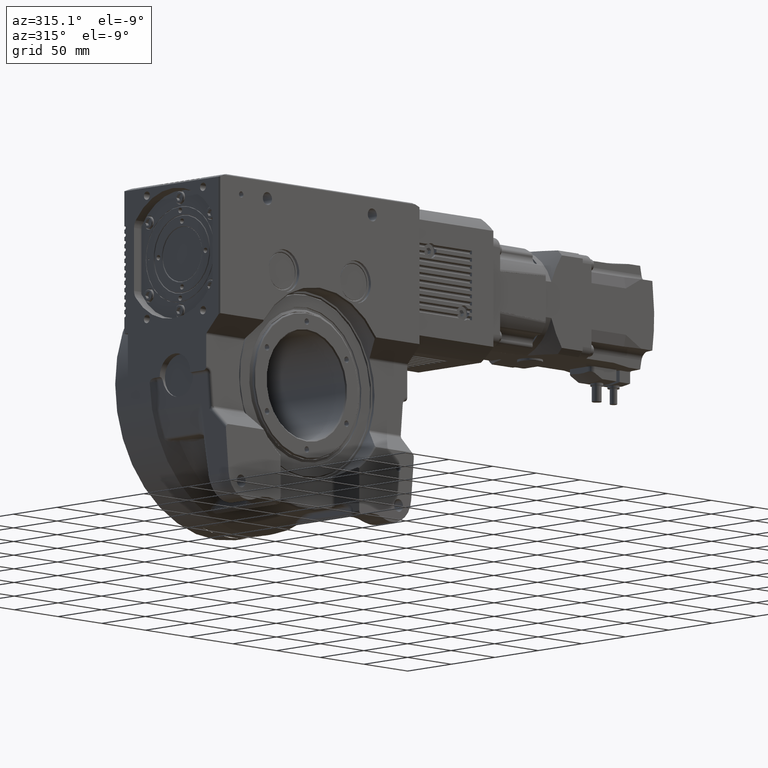
[diagram: clean part render]
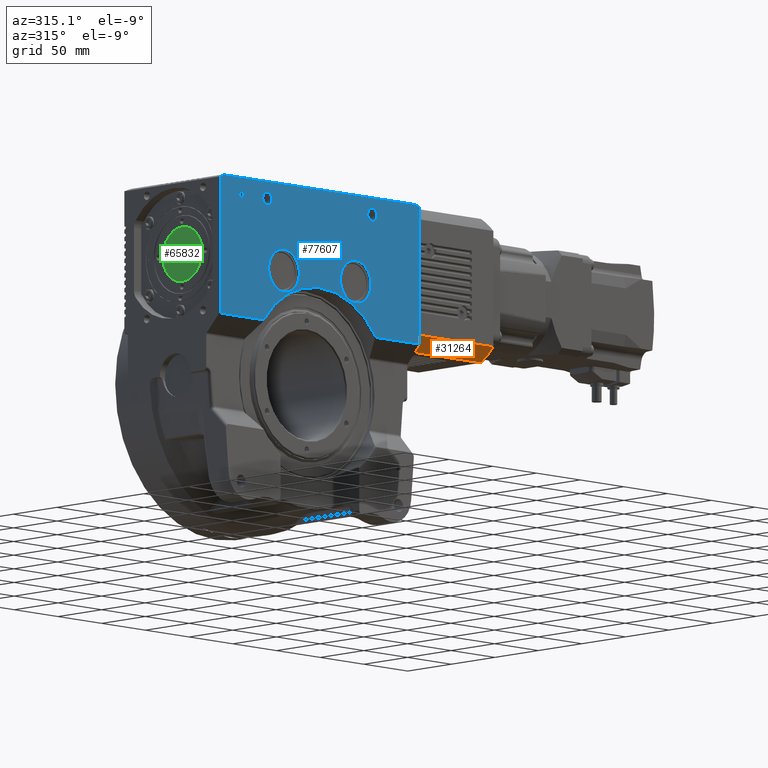
[diagram: same view with three faces highlighted in distinct colors, each labeled with its STEP entity id]
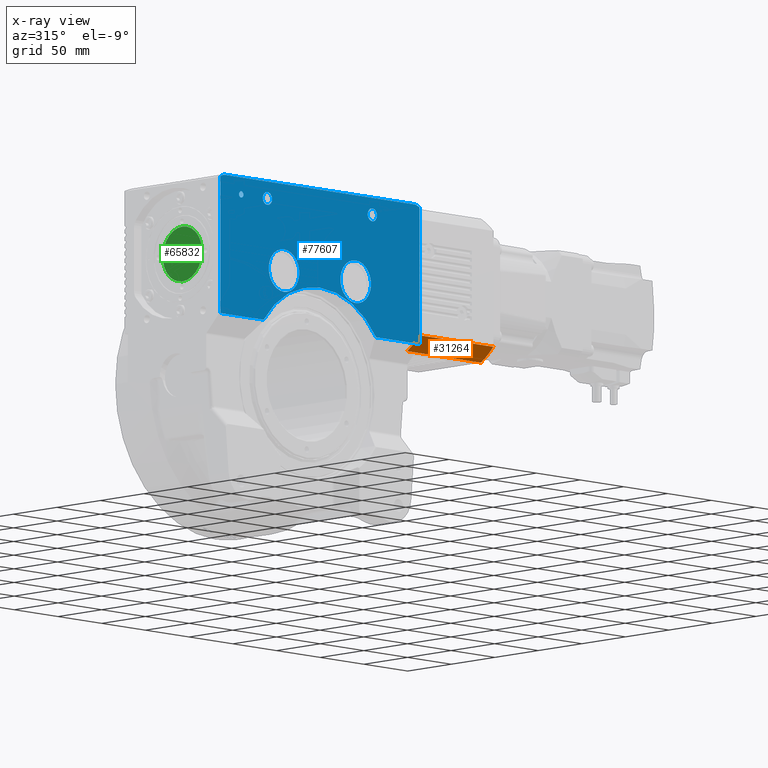
[diagram: x-ray of the same camera — body ghosted, the three highlighted faces saturated]
A machine part, auxiliary view with three faces highlighted in distinct colors.
The next image is the same camera in x-ray (body ghosted, the three faces saturated) — at least one of them is partly hidden behind the body in this view.
Their STEP definitions:

[orange] entity #31264 — the highlighted cylindrical surface (partial cylindrical patch) has radius 69 mm, axis along (-1, 0, 0).
#1456 = DIRECTION ( 'NONE',  ( -1.000000000000000000, 3.608674816867150188E-16, 2.220446049250309876E-16 ) ) ;
#2309 = VECTOR ( 'NONE', #41007, 1000.000000000000000 ) ;
#2324 = LINE ( 'NONE', #75388, #39472 ) ;
#5391 = DIRECTION ( 'NONE',  ( -1.000000000000000000, 0.000000000000000000, 0.000000000000000000 ) ) ;
#14484 = LINE ( 'NONE', #35765, #2309 ) ;
#15080 = EDGE_LOOP ( 'NONE', ( #82884, #39103, #24491, #30785 ) ) ;
#20070 = DIRECTION ( 'NONE',  ( -1.000000000000000000, 3.608674816867150188E-16, 2.220446049250309876E-16 ) ) ;
#23572 = AXIS2_PLACEMENT_3D ( 'NONE', #64982, #5391, #58465 ) ;
#24491 = ORIENTED_EDGE ( 'NONE', *, *, #59817, .T. ) ;
#26186 = DIRECTION ( 'NONE',  ( -2.220446049250310369E-16, -8.480871470268981378E-17, -1.000000000000000000 ) ) ;
#26765 = AXIS2_PLACEMENT_3D ( 'NONE', #66189, #20070, #26186 ) ;
#27122 = FACE_OUTER_BOUND ( 'NONE', #15080, .T. ) ;
#27556 = CARTESIAN_POINT ( 'NONE',  ( 0.000000000000000000, 0.000000000000000000, 0.000000000000000000 ) ) ;
#28858 = DIRECTION ( 'NONE',  ( 1.000000000000000000, -3.608674816867150188E-16, -2.220446049250315053E-16 ) ) ;
#30785 = ORIENTED_EDGE ( 'NONE', *, *, #79170, .T. ) ;
#31264 = ADVANCED_FACE ( 'NONE', ( #27122 ), #58164, .T. ) ;
#33437 = CARTESIAN_POINT ( 'NONE',  ( 84.50000000000000000, -50.00000000000000000, -47.54997371187499766 ) ) ;
#35765 = CARTESIAN_POINT ( 'NONE',  ( -3.295031311321454173E-14, -35.77708763999665109, -59.00000000000000000 ) ) ;
#36901 = EDGE_CURVE ( 'NONE', #75040, #48368, #73965, .T. ) ;
#39103 = ORIENTED_EDGE ( 'NONE', *, *, #36901, .F. ) ;
#39472 = VECTOR ( 'NONE', #28858, 1000.000000000000000 ) ;
#39758 = EDGE_CURVE ( 'NONE', #48368, #54940, #2324, .T. ) ;
#41007 = DIRECTION ( 'NONE',  ( 1.000000000000000000, -3.608674816867150188E-16, -2.220446049250315053E-16 ) ) ;
#42094 = CARTESIAN_POINT ( 'NONE',  ( -3.295031311321454173E-14, -35.77708763999665109, -59.00000000000000000 ) ) ;
#48368 = VERTEX_POINT ( 'NONE', #84329 ) ;
#48380 = VERTEX_POINT ( 'NONE', #56074 ) ;
#53643 = DIRECTION ( 'NONE',  ( -2.220446049250310369E-16, -8.480871470268970285E-17, -1.000000000000000000 ) ) ;
#54940 = VERTEX_POINT ( 'NONE', #33437 ) ;
#56074 = CARTESIAN_POINT ( 'NONE',  ( 84.50000000000000000, -35.77708763999665109, -59.00000000000000000 ) ) ;
#58164 = CYLINDRICAL_SURFACE ( 'NONE', #70680, 69.00000000000000000 ) ;
#58465 = DIRECTION ( 'NONE',  ( 0.000000000000000000, 0.000000000000000000, 1.000000000000000000 ) ) ;
#59817 = EDGE_CURVE ( 'NONE', #75040, #48380, #14484, .T. ) ;
#61099 = CIRCLE ( 'NONE', #23572, 69.00000000000000000 ) ;
#64982 = CARTESIAN_POINT ( 'NONE',  ( 84.50000000000000000, -2.165204890120289758E-14, -1.332267629550188006E-14 ) ) ;
#66189 = CARTESIAN_POINT ( 'NONE',  ( 0.000000000000000000, 0.000000000000000000, 0.000000000000000000 ) ) ;
#70680 = AXIS2_PLACEMENT_3D ( 'NONE', #27556, #1456, #53643 ) ;
#73965 = CIRCLE ( 'NONE', #26765, 69.00000000000000000 ) ;
#75040 = VERTEX_POINT ( 'NONE', #42094 ) ;
#75388 = CARTESIAN_POINT ( 'NONE',  ( -3.554048311529190205E-14, -50.00000000000000000, -47.54997371187499766 ) ) ;
#79170 = EDGE_CURVE ( 'NONE', #48380, #54940, #61099, .T. ) ;
#82884 = ORIENTED_EDGE ( 'NONE', *, *, #39758, .F. ) ;
#84329 = CARTESIAN_POINT ( 'NONE',  ( -3.554048311529190205E-14, -50.00000000000000000, -47.54997371187499766 ) ) ;

[blue] entity #77607 — the highlighted planar face has unit normal (0, 1, 0).
#649 = LINE ( 'NONE', #52867, #70607 ) ;
#672 = DIRECTION ( 'NONE',  ( 0.000000000000000000, -1.000000000000000000, 0.000000000000000000 ) ) ;
#695 = AXIS2_PLACEMENT_3D ( 'NONE', #80155, #45784, #78869 ) ;
#981 = FACE_OUTER_BOUND ( 'NONE', #84435, .T. ) ;
#995 = EDGE_CURVE ( 'NONE', #62371, #54297, #50778, .T. ) ;
#1553 = DIRECTION ( 'NONE',  ( 0.000000000000000000, -1.000000000000000000, 0.000000000000000000 ) ) ;
#1925 = DIRECTION ( 'NONE',  ( 0.000000000000000000, 0.000000000000000000, -1.000000000000000000 ) ) ;
#2087 = VECTOR ( 'NONE', #51206, 1000.000000000000000 ) ;
#2200 = DIRECTION ( 'NONE',  ( 0.000000000000000000, -1.000000000000000000, 0.000000000000000000 ) ) ;
#2812 = DIRECTION ( 'NONE',  ( 0.000000000000000000, 0.000000000000000000, -1.000000000000000000 ) ) ;
#3151 = VERTEX_POINT ( 'NONE', #25999 ) ;
#3423 = VERTEX_POINT ( 'NONE', #36790 ) ;
#3470 = CIRCLE ( 'NONE', #695, 17.50000000000000000 ) ;
#3507 = AXIS2_PLACEMENT_3D ( 'NONE', #40047, #53517, #71804 ) ;
#3541 = CIRCLE ( 'NONE', #25784, 17.50000000000000000 ) ;
#4296 = DIRECTION ( 'NONE',  ( 0.000000000000000000, 0.000000000000000000, 1.000000000000000000 ) ) ;
#4676 = VERTEX_POINT ( 'NONE', #70471 ) ;
#4880 = CIRCLE ( 'NONE', #3507, 5.250000000000004441 ) ;
#5436 = EDGE_CURVE ( 'NONE', #49827, #43812, #3470, .T. ) ;
#6893 = CARTESIAN_POINT ( 'NONE',  ( 6.033302353763029824E-15, -51.00000000000000000, 45.00000000000000000 ) ) ;
#7380 = CARTESIAN_POINT ( 'NONE',  ( -114.0000000000000000, -51.00000000000000000, 45.00000000000000000 ) ) ;
#9128 = CARTESIAN_POINT ( 'NONE',  ( 41.00000000000000000, -51.00000000000000000, 88.00000000000000000 ) ) ;
#11263 = ORIENTED_EDGE ( 'NONE', *, *, #34214, .F. ) ;
#12148 = CARTESIAN_POINT ( 'NONE',  ( 114.0000000000000000, -51.00000000000000000, 157.0000000000000000 ) ) ;
#12444 = CARTESIAN_POINT ( 'NONE',  ( 114.0000000000000000, -51.00000000000000000, 45.00000000000000000 ) ) ;
#13104 = CARTESIAN_POINT ( 'NONE',  ( 109.5050451610903934, -51.00000000000000000, 159.0000000000000000 ) ) ;
#13822 = VECTOR ( 'NONE', #47319, 1000.000000000000000 ) ;
#15130 = CARTESIAN_POINT ( 'NONE',  ( 114.0000000000000000, -51.00000000000000000, 157.3639702342660200 ) ) ;
#15664 = EDGE_CURVE ( 'NONE', #66072, #78159, #649, .T. ) ;
#16142 = ORIENTED_EDGE ( 'NONE', *, *, #82449, .T. ) ;
#16432 = CARTESIAN_POINT ( 'NONE',  ( 41.00000000000000000, -51.00000000000000000, 70.50000000000000000 ) ) ;
#16499 = DIRECTION ( 'NONE',  ( -0.9396926207859073177, 0.000000000000000000, -0.3420201433256715995 ) ) ;
#17415 = DIRECTION ( 'NONE',  ( -0.9396926207859073177, 0.000000000000000000, 0.3420201433256715995 ) ) ;
#17784 = EDGE_CURVE ( 'NONE', #43812, #49827, #47987, .T. ) ;
#19043 = CARTESIAN_POINT ( 'NONE',  ( -41.00000000000000000, -51.00000000000000000, 88.00000000000000000 ) ) ;
#19054 = CIRCLE ( 'NONE', #30158, 2.500000000000002220 ) ;
#19177 = EDGE_CURVE ( 'NONE', #4676, #3151, #4880, .T. ) ;
#19327 = DIRECTION ( 'NONE',  ( 0.000000000000000000, -1.000000000000000000, 0.000000000000000000 ) ) ;
#22177 = DIRECTION ( 'NONE',  ( 0.000000000000000000, 0.000000000000000000, -1.000000000000000000 ) ) ;
#22246 = AXIS2_PLACEMENT_3D ( 'NONE', #30171, #69344, #2812 ) ;
#22675 = CARTESIAN_POINT ( 'NONE',  ( -90.00000000000000000, -51.00000000000000000, 147.5000000000000000 ) ) ;
#23062 = EDGE_LOOP ( 'NONE', ( #32638, #68328 ) ) ;
#23207 = EDGE_CURVE ( 'NONE', #38174, #50772, #3541, .T. ) ;
#23560 = PLANE ( 'NONE',  #58050 ) ;
#24222 = DIRECTION ( 'NONE',  ( 0.000000000000000000, 1.000000000000000000, 0.000000000000000000 ) ) ;
#25196 = VERTEX_POINT ( 'NONE', #12444 ) ;
#25784 = AXIS2_PLACEMENT_3D ( 'NONE', #9128, #43422, #22177 ) ;
#25999 = CARTESIAN_POINT ( 'NONE',  ( -60.00000000000000000, -51.00000000000000000, 139.7500000000000000 ) ) ;
#26296 = DIRECTION ( 'NONE',  ( 0.000000000000000000, 0.000000000000000000, -1.000000000000000000 ) ) ;
#27519 = FACE_BOUND ( 'NONE', #23062, .T. ) ;
#27995 = CARTESIAN_POINT ( 'NONE',  ( -114.0000000000000000, -51.00000000000000000, 45.00000000000000000 ) ) ;
#28224 = LINE ( 'NONE', #7380, #74901 ) ;
#28528 = ORIENTED_EDGE ( 'NONE', *, *, #44486, .F. ) ;
#29229 = FACE_BOUND ( 'NONE', #80310, .T. ) ;
#29501 = ORIENTED_EDGE ( 'NONE', *, *, #47751, .T. ) ;
#29744 = EDGE_CURVE ( 'NONE', #3151, #4676, #34309, .T. ) ;
#30158 = AXIS2_PLACEMENT_3D ( 'NONE', #54599, #1553, #34622 ) ;
#30171 = CARTESIAN_POINT ( 'NONE',  ( 41.00000000000000000, -51.00000000000000000, 88.00000000000000000 ) ) ;
#32585 = CARTESIAN_POINT ( 'NONE',  ( 64.32145831680129788, -51.00000000000000000, 45.00000000000000000 ) ) ;
#32638 = ORIENTED_EDGE ( 'NONE', *, *, #17784, .F. ) ;
#33088 = VERTEX_POINT ( 'NONE', #22675 ) ;
#33166 = CIRCLE ( 'NONE', #51159, 5.250000000000004441 ) ;
#33658 = CARTESIAN_POINT ( 'NONE',  ( -90.00000000000000000, -51.00000000000000000, 145.0000000000000000 ) ) ;
#33861 = EDGE_CURVE ( 'NONE', #47575, #25196, #54681, .T. ) ;
#34214 = EDGE_CURVE ( 'NONE', #50772, #38174, #48644, .T. ) ;
#34309 = CIRCLE ( 'NONE', #56540, 5.250000000000004441 ) ;
#34622 = DIRECTION ( 'NONE',  ( 0.000000000000000000, 0.000000000000000000, -1.000000000000000000 ) ) ;
#34992 = CARTESIAN_POINT ( 'NONE',  ( 60.00000000000000000, -51.00000000000000000, 145.0000000000000000 ) ) ;
#36418 = DIRECTION ( 'NONE',  ( 0.000000000000000000, 0.000000000000000000, 1.000000000000000000 ) ) ;
#36546 = EDGE_CURVE ( 'NONE', #72948, #33088, #82290, .T. ) ;
#36790 = CARTESIAN_POINT ( 'NONE',  ( 60.00000000000000000, -51.00000000000000000, 139.7500000000000000 ) ) ;
#37375 = CARTESIAN_POINT ( 'NONE',  ( -109.5050451610908055, -51.00000000000000000, 159.0000000000000000 ) ) ;
#38174 = VERTEX_POINT ( 'NONE', #82549 ) ;
#38672 = DIRECTION ( 'NONE',  ( 1.513940488125214831E-16, 0.000000000000000000, 1.000000000000000000 ) ) ;
#39396 = CARTESIAN_POINT ( 'NONE',  ( -60.00000000000000000, -51.00000000000000000, 145.0000000000000000 ) ) ;
#39789 = DIRECTION ( 'NONE',  ( 0.000000000000000000, -1.000000000000000000, 0.000000000000000000 ) ) ;
#40047 = CARTESIAN_POINT ( 'NONE',  ( -60.00000000000000000, -51.00000000000000000, 145.0000000000000000 ) ) ;
#41385 = EDGE_LOOP ( 'NONE', ( #59050, #28528 ) ) ;
#42959 = CARTESIAN_POINT ( 'NONE',  ( -6.033302353763029824E-15, -51.00000000000000000, 45.00000000000000000 ) ) ;
#43404 = AXIS2_PLACEMENT_3D ( 'NONE', #50334, #24222, #36418 ) ;
#43422 = DIRECTION ( 'NONE',  ( 0.000000000000000000, -1.000000000000000000, 0.000000000000000000 ) ) ;
#43531 = FACE_BOUND ( 'NONE', #41385, .T. ) ;
#43812 = VERTEX_POINT ( 'NONE', #81376 ) ;
#44486 = EDGE_CURVE ( 'NONE', #33088, #72948, #19054, .T. ) ;
#44745 = AXIS2_PLACEMENT_3D ( 'NONE', #33658, #19327, #26296 ) ;
#45352 = CARTESIAN_POINT ( 'NONE',  ( -64.32145831680129788, -51.00000000000000000, 45.00000000000000000 ) ) ;
#45784 = DIRECTION ( 'NONE',  ( 0.000000000000000000, -1.000000000000000000, 0.000000000000000000 ) ) ;
#46642 = ORIENTED_EDGE ( 'NONE', *, *, #76050, .F. ) ;
#47319 = DIRECTION ( 'NONE',  ( 1.000000000000000000, 0.000000000000000000, -1.340733856391782061E-16 ) ) ;
#47575 = VERTEX_POINT ( 'NONE', #32585 ) ;
#47751 = EDGE_CURVE ( 'NONE', #59776, #62371, #28224, .T. ) ;
#47987 = CIRCLE ( 'NONE', #50718, 17.50000000000000000 ) ;
#48296 = ORIENTED_EDGE ( 'NONE', *, *, #61515, .F. ) ;
#48644 = CIRCLE ( 'NONE', #22246, 17.50000000000000000 ) ;
#49827 = VERTEX_POINT ( 'NONE', #67332 ) ;
#50262 = CIRCLE ( 'NONE', #43404, 78.50000000000000000 ) ;
#50334 = CARTESIAN_POINT ( 'NONE',  ( 0.000000000000000000, -51.00000000000000000, 0.000000000000000000 ) ) ;
#50478 = LINE ( 'NONE', #57444, #77858 ) ;
#50718 = AXIS2_PLACEMENT_3D ( 'NONE', #19043, #85181, #4296 ) ;
#50772 = VERTEX_POINT ( 'NONE', #16432 ) ;
#50778 = LINE ( 'NONE', #42959, #2087 ) ;
#51159 = AXIS2_PLACEMENT_3D ( 'NONE', #74416, #2200, #67898 ) ;
#51206 = DIRECTION ( 'NONE',  ( 1.000000000000000000, 0.000000000000000000, 1.340733856391782061E-16 ) ) ;
#52867 = CARTESIAN_POINT ( 'NONE',  ( -106.7575677416361941, -51.00000000000000000, 159.0000000000000000 ) ) ;
#53310 = DIRECTION ( 'NONE',  ( 0.000000000000000000, 0.000000000000000000, -1.000000000000000000 ) ) ;
#53324 = ORIENTED_EDGE ( 'NONE', *, *, #15664, .T. ) ;
#53517 = DIRECTION ( 'NONE',  ( 0.000000000000000000, -1.000000000000000000, 0.000000000000000000 ) ) ;
#54297 = VERTEX_POINT ( 'NONE', #45352 ) ;
#54599 = CARTESIAN_POINT ( 'NONE',  ( -90.00000000000000000, -51.00000000000000000, 145.0000000000000000 ) ) ;
#54681 = LINE ( 'NONE', #6893, #13822 ) ;
#56043 = ORIENTED_EDGE ( 'NONE', *, *, #19177, .F. ) ;
#56540 = AXIS2_PLACEMENT_3D ( 'NONE', #39396, #672, #53310 ) ;
#56626 = DIRECTION ( 'NONE',  ( -0.000000000000000000, 1.000000000000000000, 0.000000000000000000 ) ) ;
#57444 = CARTESIAN_POINT ( 'NONE',  ( 106.7575677416361941, -51.00000000000000000, 160.0000000000000000 ) ) ;
#58050 = AXIS2_PLACEMENT_3D ( 'NONE', #74934, #56626, #61877 ) ;
#58962 = DIRECTION ( 'NONE',  ( -1.000000000000000000, 0.000000000000000000, 0.000000000000000000 ) ) ;
#59050 = ORIENTED_EDGE ( 'NONE', *, *, #36546, .F. ) ;
#59602 = ORIENTED_EDGE ( 'NONE', *, *, #29744, .F. ) ;
#59776 = VERTEX_POINT ( 'NONE', #81484 ) ;
#61515 = EDGE_CURVE ( 'NONE', #3423, #80411, #33166, .T. ) ;
#61877 = DIRECTION ( 'NONE',  ( 1.000000000000000000, 0.000000000000000000, 0.000000000000000000 ) ) ;
#62371 = VERTEX_POINT ( 'NONE', #27995 ) ;
#62725 = FACE_BOUND ( 'NONE', #63399, .T. ) ;
#63399 = EDGE_LOOP ( 'NONE', ( #59602, #56043 ) ) ;
#65884 = ORIENTED_EDGE ( 'NONE', *, *, #33861, .T. ) ;
#66072 = VERTEX_POINT ( 'NONE', #13104 ) ;
#66820 = EDGE_CURVE ( 'NONE', #54297, #47575, #50262, .T. ) ;
#66912 = VECTOR ( 'NONE', #16499, 1000.000000000000114 ) ;
#67332 = CARTESIAN_POINT ( 'NONE',  ( -41.00000000000000000, -51.00000000000000000, 105.5000000000000000 ) ) ;
#67468 = ORIENTED_EDGE ( 'NONE', *, *, #66820, .T. ) ;
#67530 = FACE_BOUND ( 'NONE', #84859, .T. ) ;
#67898 = DIRECTION ( 'NONE',  ( 0.000000000000000000, 0.000000000000000000, -1.000000000000000000 ) ) ;
#68049 = CARTESIAN_POINT ( 'NONE',  ( 60.00000000000000000, -51.00000000000000000, 150.2500000000000000 ) ) ;
#68328 = ORIENTED_EDGE ( 'NONE', *, *, #5436, .F. ) ;
#69118 = CARTESIAN_POINT ( 'NONE',  ( -106.7575677416361941, -51.00000000000000000, 160.0000000000000000 ) ) ;
#69344 = DIRECTION ( 'NONE',  ( 0.000000000000000000, -1.000000000000000000, 0.000000000000000000 ) ) ;
#70471 = CARTESIAN_POINT ( 'NONE',  ( -60.00000000000000000, -51.00000000000000000, 150.2500000000000000 ) ) ;
#70607 = VECTOR ( 'NONE', #58962, 1000.000000000000000 ) ;
#71716 = LINE ( 'NONE', #12148, #84609 ) ;
#71804 = DIRECTION ( 'NONE',  ( 0.000000000000000000, 0.000000000000000000, -1.000000000000000000 ) ) ;
#72948 = VERTEX_POINT ( 'NONE', #84128 ) ;
#73910 = DIRECTION ( 'NONE',  ( -1.513940488125214831E-16, 0.000000000000000000, -1.000000000000000000 ) ) ;
#74416 = CARTESIAN_POINT ( 'NONE',  ( 60.00000000000000000, -51.00000000000000000, 145.0000000000000000 ) ) ;
#74838 = EDGE_CURVE ( 'NONE', #25196, #85321, #71716, .T. ) ;
#74901 = VECTOR ( 'NONE', #73910, 1000.000000000000000 ) ;
#74934 = CARTESIAN_POINT ( 'NONE',  ( 0.000000000000000000, -51.00000000000000000, 0.000000000000000000 ) ) ;
#76050 = EDGE_CURVE ( 'NONE', #80411, #3423, #76614, .T. ) ;
#76083 = LINE ( 'NONE', #69118, #66912 ) ;
#76614 = CIRCLE ( 'NONE', #82158, 5.250000000000004441 ) ;
#77607 = ADVANCED_FACE ( 'NONE', ( #981, #27519, #67530, #43531, #62725, #29229 ), #23560, .F. ) ;
#77858 = VECTOR ( 'NONE', #17415, 1000.000000000000114 ) ;
#78159 = VERTEX_POINT ( 'NONE', #37375 ) ;
#78869 = DIRECTION ( 'NONE',  ( 0.000000000000000000, 0.000000000000000000, 1.000000000000000000 ) ) ;
#79302 = ORIENTED_EDGE ( 'NONE', *, *, #995, .T. ) ;
#79667 = ORIENTED_EDGE ( 'NONE', *, *, #23207, .F. ) ;
#80155 = CARTESIAN_POINT ( 'NONE',  ( -41.00000000000000000, -51.00000000000000000, 88.00000000000000000 ) ) ;
#80310 = EDGE_LOOP ( 'NONE', ( #48296, #46642 ) ) ;
#80411 = VERTEX_POINT ( 'NONE', #68049 ) ;
#80991 = EDGE_CURVE ( 'NONE', #85321, #66072, #50478, .T. ) ;
#81026 = ORIENTED_EDGE ( 'NONE', *, *, #80991, .T. ) ;
#81376 = CARTESIAN_POINT ( 'NONE',  ( -41.00000000000000000, -51.00000000000000000, 70.50000000000000000 ) ) ;
#81484 = CARTESIAN_POINT ( 'NONE',  ( -114.0000000000000000, -51.00000000000000000, 157.3639702342660200 ) ) ;
#82038 = ORIENTED_EDGE ( 'NONE', *, *, #74838, .T. ) ;
#82158 = AXIS2_PLACEMENT_3D ( 'NONE', #34992, #39789, #1925 ) ;
#82290 = CIRCLE ( 'NONE', #44745, 2.500000000000002220 ) ;
#82449 = EDGE_CURVE ( 'NONE', #78159, #59776, #76083, .T. ) ;
#82549 = CARTESIAN_POINT ( 'NONE',  ( 41.00000000000000000, -51.00000000000000000, 105.5000000000000000 ) ) ;
#84128 = CARTESIAN_POINT ( 'NONE',  ( -90.00000000000000000, -51.00000000000000000, 142.5000000000000000 ) ) ;
#84435 = EDGE_LOOP ( 'NONE', ( #79302, #67468, #65884, #82038, #81026, #53324, #16142, #29501 ) ) ;
#84609 = VECTOR ( 'NONE', #38672, 1000.000000000000000 ) ;
#84859 = EDGE_LOOP ( 'NONE', ( #11263, #79667 ) ) ;
#85181 = DIRECTION ( 'NONE',  ( 0.000000000000000000, -1.000000000000000000, 0.000000000000000000 ) ) ;
#85321 = VERTEX_POINT ( 'NONE', #15130 ) ;

[green] entity #65832 — the highlighted planar face has unit normal (1, 0, 0).
#701 = CIRCLE ( 'NONE', #41005, 22.49999999999999289 ) ;
#1471 = VERTEX_POINT ( 'NONE', #35280 ) ;
#8968 = EDGE_LOOP ( 'NONE', ( #41274, #45939 ) ) ;
#10733 = DIRECTION ( 'NONE',  ( 0.000000000000000000, 0.000000000000000000, 1.000000000000000000 ) ) ;
#11177 = DIRECTION ( 'NONE',  ( -1.000000000000000000, 0.000000000000000000, 0.000000000000000000 ) ) ;
#11765 = CIRCLE ( 'NONE', #72921, 22.49999999999999289 ) ;
#12631 = EDGE_CURVE ( 'NONE', #16344, #1471, #701, .T. ) ;
#16344 = VERTEX_POINT ( 'NONE', #42070 ) ;
#16507 = EDGE_CURVE ( 'NONE', #1471, #16344, #11765, .T. ) ;
#17969 = DIRECTION ( 'NONE',  ( -1.000000000000000000, 0.000000000000000000, 0.000000000000000000 ) ) ;
#25782 = CARTESIAN_POINT ( 'NONE',  ( -106.5000000000000000, 1.734723475976804925E-15, 100.0000000000000000 ) ) ;
#27218 = DIRECTION ( 'NONE',  ( 0.000000000000000000, 1.000000000000000000, 0.000000000000000000 ) ) ;
#33740 = FACE_OUTER_BOUND ( 'NONE', #8968, .T. ) ;
#35280 = CARTESIAN_POINT ( 'NONE',  ( -106.5000000000000000, 4.490178774058355028E-15, 77.50000000000000000 ) ) ;
#40692 = DIRECTION ( 'NONE',  ( 1.000000000000000000, 0.000000000000000000, 0.000000000000000000 ) ) ;
#41005 = AXIS2_PLACEMENT_3D ( 'NONE', #25782, #17969, #52310 ) ;
#41274 = ORIENTED_EDGE ( 'NONE', *, *, #12631, .T. ) ;
#42070 = CARTESIAN_POINT ( 'NONE',  ( -106.5000000000000000, 1.734723475976804925E-15, 122.5000000000000000 ) ) ;
#45939 = ORIENTED_EDGE ( 'NONE', *, *, #16507, .T. ) ;
#52310 = DIRECTION ( 'NONE',  ( 0.000000000000000000, 0.000000000000000000, 1.000000000000000000 ) ) ;
#58538 = AXIS2_PLACEMENT_3D ( 'NONE', #62749, #40692, #27218 ) ;
#60286 = PLANE ( 'NONE',  #58538 ) ;
#62749 = CARTESIAN_POINT ( 'NONE',  ( -106.5000000000000000, 1.734723475976804925E-15, 100.0000000000000000 ) ) ;
#65832 = ADVANCED_FACE ( 'NONE', ( #33740 ), #60286, .F. ) ;
#70308 = CARTESIAN_POINT ( 'NONE',  ( -106.5000000000000000, 1.734723475976804925E-15, 100.0000000000000000 ) ) ;
#72921 = AXIS2_PLACEMENT_3D ( 'NONE', #70308, #11177, #10733 ) ;